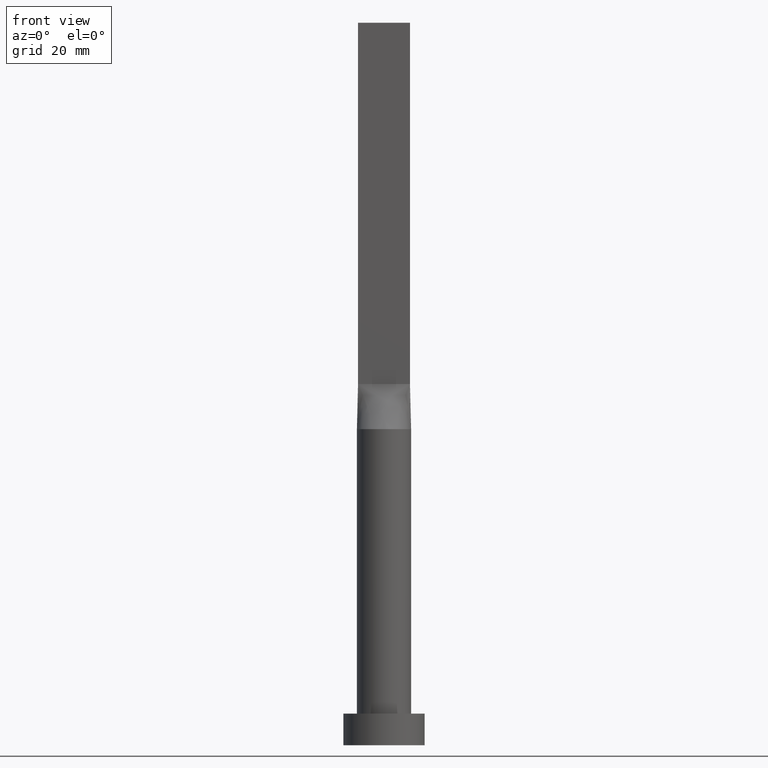
[diagram: clean part render]
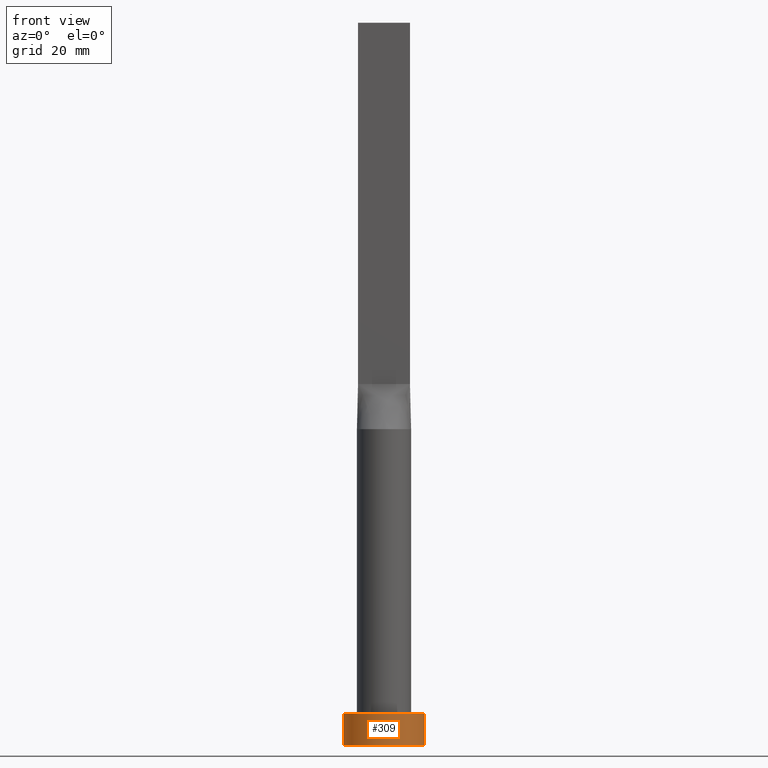
[diagram: same view with one face highlighted and labeled with its STEP entity id]
A machine part, front view. The second image highlights one B-rep face of the part: STEP entity #309.
In plain terms, the highlighted cylindrical surface (partial cylindrical patch) has radius 9 mm, axis along (-0, -0, -1).
Its self-contained STEP definition (entity closure, byte-faithful):
#16 = ORIENTED_EDGE ( 'NONE', *, *, #196, .T. ) ;
#24 = CARTESIAN_POINT ( 'NONE',  ( -9.000000000000000000, 0.000000000000000000, 0.000000000000000000 ) ) ;
#25 = VECTOR ( 'NONE', #178, 1000.000000000000000 ) ;
#48 = LINE ( 'NONE', #52, #281 ) ;
#52 = CARTESIAN_POINT ( 'NONE',  ( -9.000000000000000000, 0.000000000000000000, 7.000000000000000000 ) ) ;
#74 = VERTEX_POINT ( 'NONE', #349 ) ;
#85 = EDGE_CURVE ( 'NONE', #74, #303, #264, .T. ) ;
#95 = CYLINDRICAL_SURFACE ( 'NONE', #273, 9.000000000000000000 ) ;
#108 = DIRECTION ( 'NONE',  ( 1.000000000000000000, 0.000000000000000000, 0.000000000000000000 ) ) ;
#113 = DIRECTION ( 'NONE',  ( 0.000000000000000000, 0.000000000000000000, 1.000000000000000000 ) ) ;
#114 = ORIENTED_EDGE ( 'NONE', *, *, #85, .F. ) ;
#117 = ORIENTED_EDGE ( 'NONE', *, *, #532, .F. ) ;
#122 = CIRCLE ( 'NONE', #383, 9.000000000000000000 ) ;
#127 = DIRECTION ( 'NONE',  ( 1.000000000000000000, 0.000000000000000000, 0.000000000000000000 ) ) ;
#141 = CARTESIAN_POINT ( 'NONE',  ( 0.000000000000000000, 0.000000000000000000, 7.000000000000000000 ) ) ;
#152 = ORIENTED_EDGE ( 'NONE', *, *, #283, .T. ) ;
#178 = DIRECTION ( 'NONE',  ( -0.000000000000000000, -0.000000000000000000, -1.000000000000000000 ) ) ;
#196 = EDGE_CURVE ( 'NONE', #491, #340, #122, .T. ) ;
#216 = CARTESIAN_POINT ( 'NONE',  ( 0.000000000000000000, 0.000000000000000000, 7.000000000000000000 ) ) ;
#264 = CIRCLE ( 'NONE', #537, 9.000000000000000000 ) ;
#273 = AXIS2_PLACEMENT_3D ( 'NONE', #141, #534, #348 ) ;
#281 = VECTOR ( 'NONE', #448, 1000.000000000000000 ) ;
#283 = EDGE_CURVE ( 'NONE', #74, #491, #48, .T. ) ;
#303 = VERTEX_POINT ( 'NONE', #402 ) ;
#309 = ADVANCED_FACE ( 'NONE', ( #545 ), #95, .T. ) ;
#317 = DIRECTION ( 'NONE',  ( 0.000000000000000000, 0.000000000000000000, 1.000000000000000000 ) ) ;
#340 = VERTEX_POINT ( 'NONE', #451 ) ;
#348 = DIRECTION ( 'NONE',  ( -1.000000000000000000, 0.000000000000000000, 0.000000000000000000 ) ) ;
#349 = CARTESIAN_POINT ( 'NONE',  ( -9.000000000000000000, 0.000000000000000000, 7.000000000000000000 ) ) ;
#383 = AXIS2_PLACEMENT_3D ( 'NONE', #470, #317, #127 ) ;
#402 = CARTESIAN_POINT ( 'NONE',  ( 9.000000000000000000, 1.102182119232617714E-15, 7.000000000000000000 ) ) ;
#420 = LINE ( 'NONE', #611, #25 ) ;
#448 = DIRECTION ( 'NONE',  ( -0.000000000000000000, -0.000000000000000000, -1.000000000000000000 ) ) ;
#451 = CARTESIAN_POINT ( 'NONE',  ( 9.000000000000000000, 1.102182119232617714E-15, 0.000000000000000000 ) ) ;
#470 = CARTESIAN_POINT ( 'NONE',  ( 0.000000000000000000, 0.000000000000000000, 0.000000000000000000 ) ) ;
#491 = VERTEX_POINT ( 'NONE', #24 ) ;
#515 = EDGE_LOOP ( 'NONE', ( #117, #114, #152, #16 ) ) ;
#532 = EDGE_CURVE ( 'NONE', #303, #340, #420, .T. ) ;
#534 = DIRECTION ( 'NONE',  ( -0.000000000000000000, -0.000000000000000000, -1.000000000000000000 ) ) ;
#537 = AXIS2_PLACEMENT_3D ( 'NONE', #216, #113, #108 ) ;
#545 = FACE_OUTER_BOUND ( 'NONE', #515, .T. ) ;
#611 = CARTESIAN_POINT ( 'NONE',  ( 9.000000000000000000, 1.102182119232617714E-15, 7.000000000000000000 ) ) ;